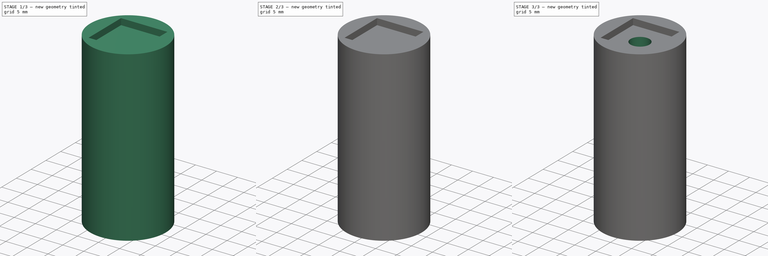
[diagram: build sequence overview — one tinted view per stage of 3, left to right]
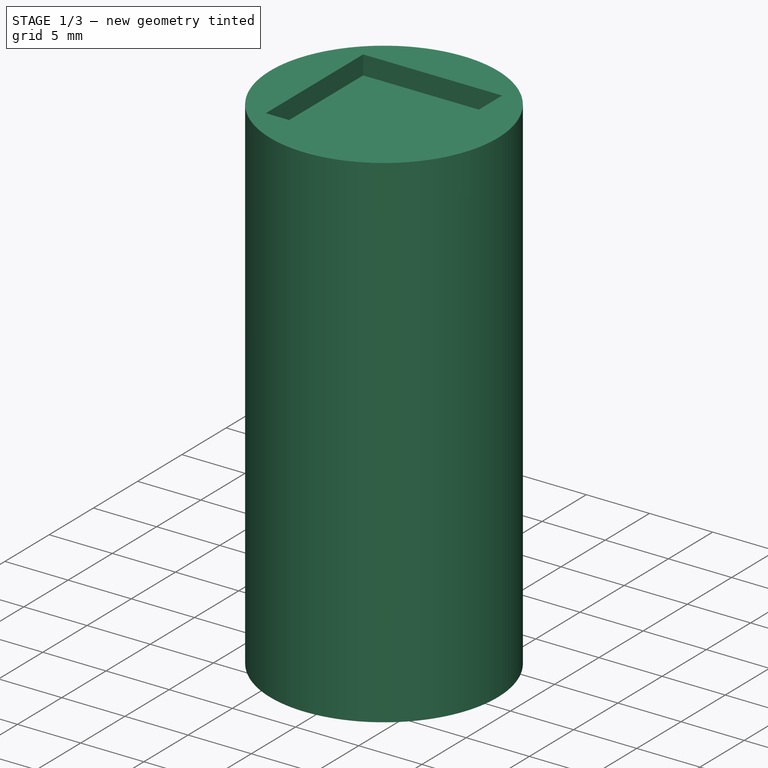
[diagram: stage 1 of 3 — iso view after this stage's code; geometry added in this stage tinted green]
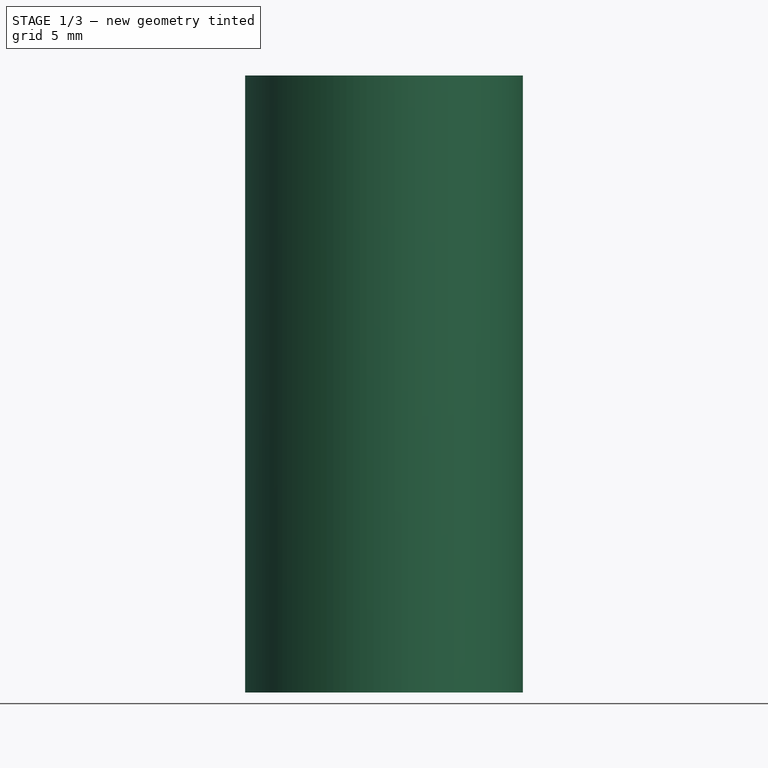
[diagram: stage 1 of 3 — front view after this stage's code; geometry added in this stage tinted green]
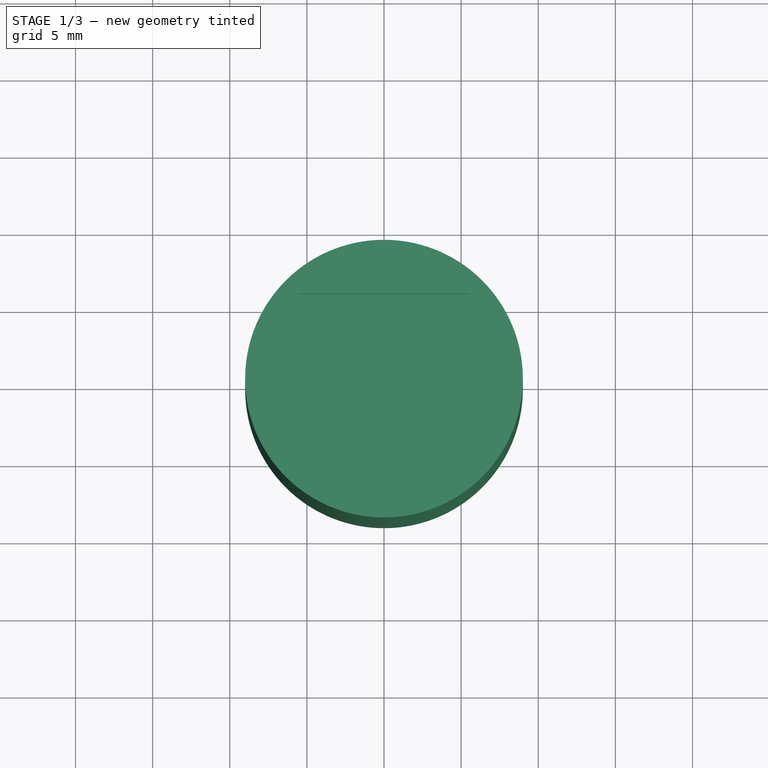
[diagram: stage 1 of 3 — top view after this stage's code; geometry added in this stage tinted green]
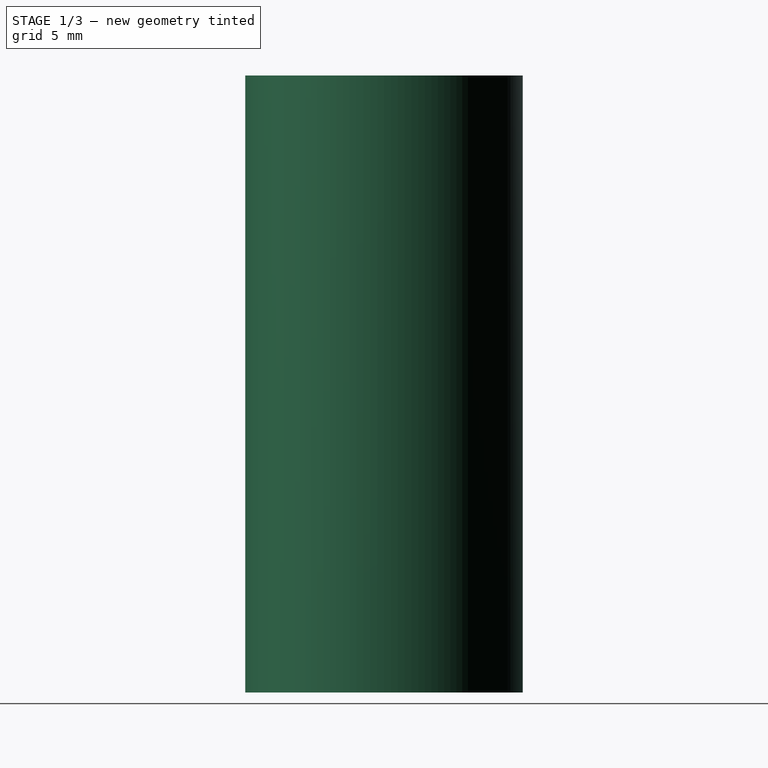
[diagram: stage 1 of 3 — right view after this stage's code; geometry added in this stage tinted green]
FCSTD DOCUMENT  (FreeCAD 0.19R24276 (Git))
Label: liitokala
License: All rights reserved
LicenseURL: http://en.wikipedia.org/wiki/All_rights_reserved
objects: Sketcher::SketchObject×6, PartDesign::Pocket×5, PartDesign::Pad×1, PartDesign::Body×1
note: 19 computed .brp shape members not serialized (recipe doc carries the construction recipe); baked Part::Feature solids carry a one-line shape summary decoded from their .brp

FEATURE [Sketcher::SketchObject] Sketch
  FullyConstrained = true
  MapMode = 5
  Support = -> [XY_Plane]
  expr: Constraints[1] = 18 / 2
  sketch-geometry (1):
    g0: Circle CenterX=0 CenterY=0 CenterZ=0 NormalX=0 NormalY=0 NormalZ=1 AngleXU=0 Radius=9
  constraints (2):
    c: Coincident(g0,g-1)
    c: Radius(g0) = 9
FEATURE [PartDesign::Pad] Pad
  Direction = (1,1,1)
  Length = 40
  Length2 = 100
  Profile = -> Sketch
  Type = 0
  expr: Length = 65 - 25
FEATURE [Sketcher::SketchObject] Sketch001
  FullyConstrained = true
  MapMode = 5
  Placement = pos=(0,0,40) rot=(0,0,1;0rad)
  Support = -> [Pad]
  expr: Constraints[11] = 11 / 2
  expr: Constraints[10] = 11 / 2
  sketch-geometry (4):
    g0: LineSegment StartX=-5.5 StartY=5.5 StartZ=0 EndX=5.5 EndY=5.5 EndZ=0
    g1: LineSegment StartX=5.5 StartY=5.5 StartZ=0 EndX=5.5 EndY=-5.5 EndZ=0
    g2: LineSegment StartX=5.5 StartY=-5.5 StartZ=0 EndX=-5.5 EndY=-5.5 EndZ=0
    g3: LineSegment StartX=-5.5 StartY=-5.5 StartZ=0 EndX=-5.5 EndY=5.5 EndZ=0
  constraints (12):
    c: Coincident(g0,g1)
    c: Coincident(g1,g2)
    c: Coincident(g2,g3)
    c: Coincident(g3,g0)
    c: Horizontal(g0)
    c: Horizontal(g2)
    c: Vertical(g1)
    c: Vertical(g3)
    c: DistanceX(g0,g0) = 11
    c: DistanceY(g1,g1) = 11
    c: DistanceX(g0) = 5.5
    c: DistanceY(g0) = 5.5
FEATURE [PartDesign::Pocket] Pocket
  BaseFeature = -> Pad
  Length = 1.5
  Length2 = 100
  Profile = -> Sketch001
  Type = 0
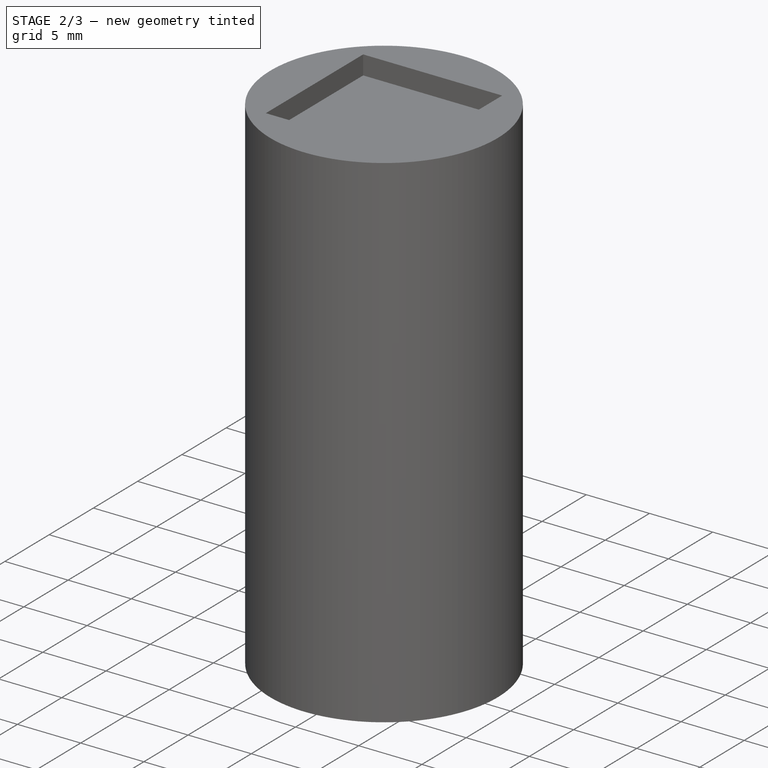
[diagram: stage 2 of 3 — iso view after this stage's code; geometry added in this stage tinted green]
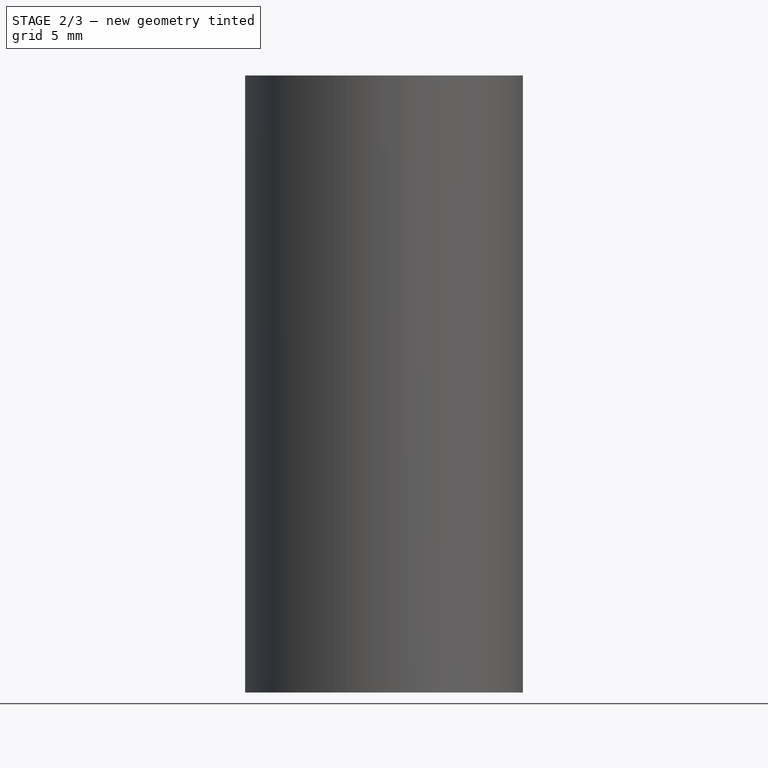
[diagram: stage 2 of 3 — front view after this stage's code; geometry added in this stage tinted green]
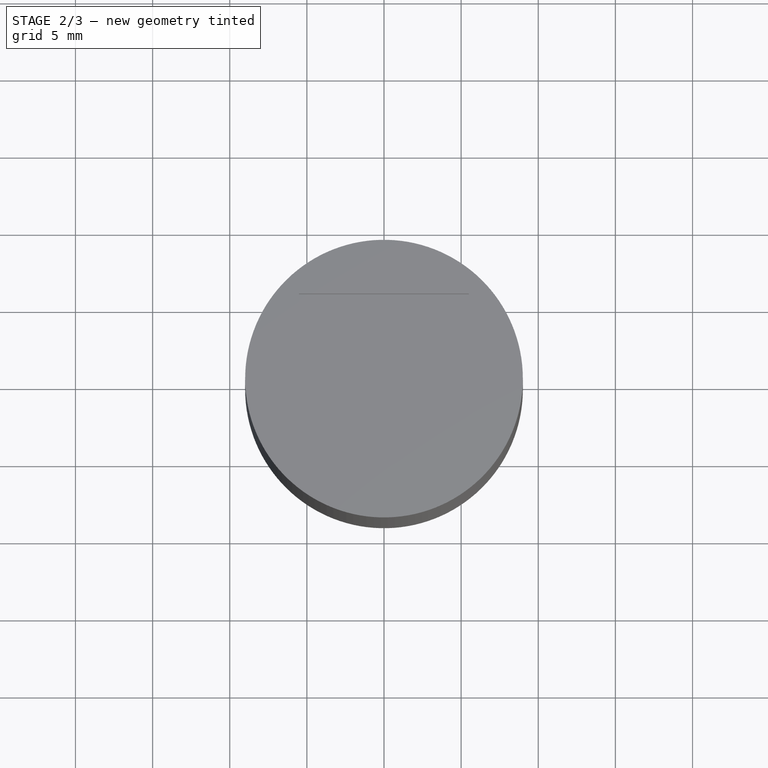
[diagram: stage 2 of 3 — top view after this stage's code; geometry added in this stage tinted green]
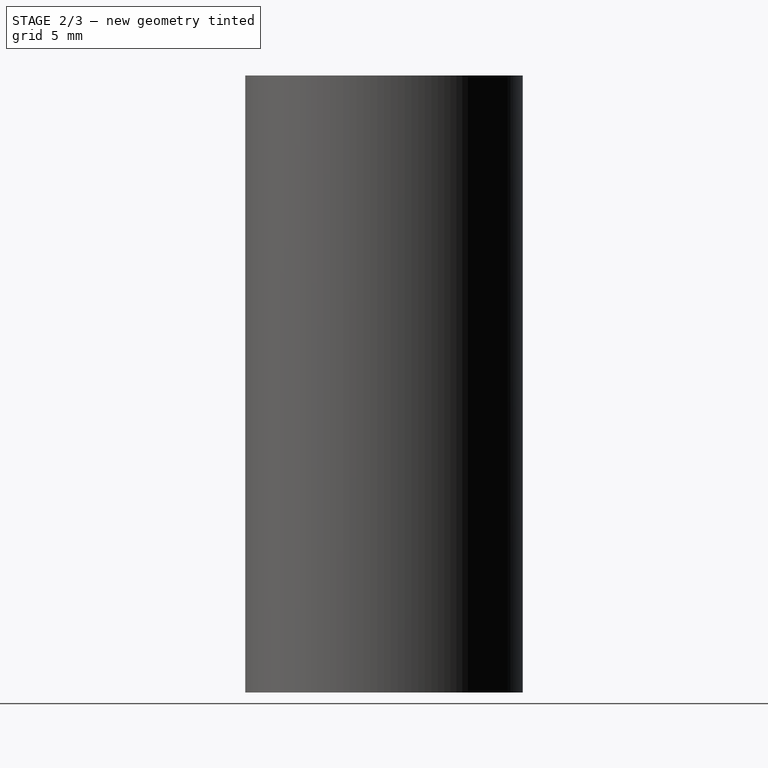
[diagram: stage 2 of 3 — right view after this stage's code; geometry added in this stage tinted green]
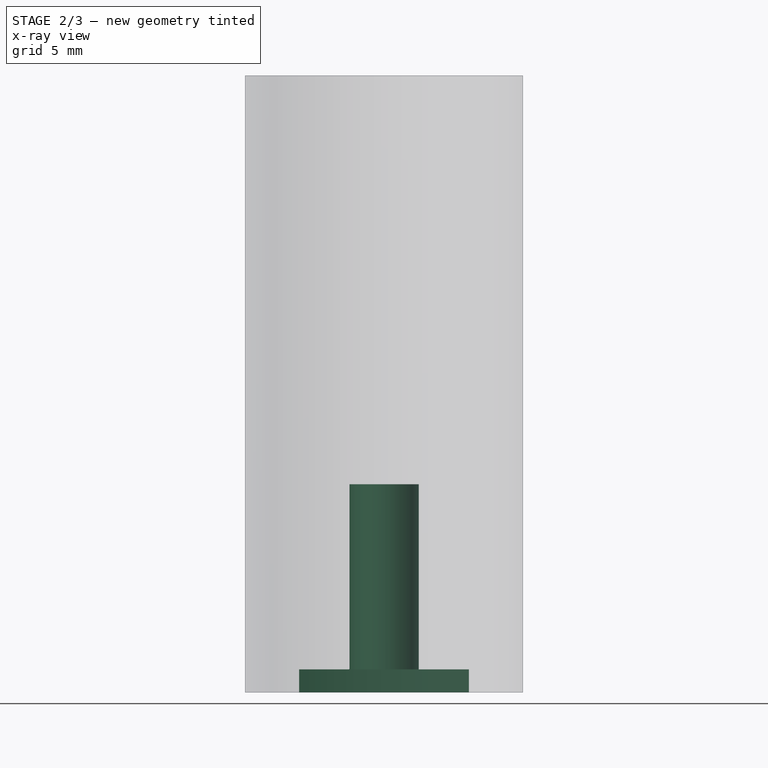
[diagram: stage 2 of 3 — x-ray composite at the front view; earlier geometry ghosted, this stage's added geometry solid]
FEATURE [Sketcher::SketchObject] Sketch002
  FullyConstrained = true
  MapMode = 5
  Placement = pos=(0,0,0) rot=(1,0,0;3.14159rad)
  Support = -> [Pocket]
  expr: Constraints[11] = 11 / 2
  expr: Constraints[10] = 11 / 2
  sketch-geometry (4):
    g0: LineSegment StartX=-5.5 StartY=5.5 StartZ=0 EndX=5.5 EndY=5.5 EndZ=0
    g1: LineSegment StartX=5.5 StartY=5.5 StartZ=0 EndX=5.5 EndY=-5.5 EndZ=0
    g2: LineSegment StartX=5.5 StartY=-5.5 StartZ=0 EndX=-5.5 EndY=-5.5 EndZ=0
    g3: LineSegment StartX=-5.5 StartY=-5.5 StartZ=0 EndX=-5.5 EndY=5.5 EndZ=0
  constraints (12):
    c: Coincident(g0,g1)
    c: Coincident(g1,g2)
    c: Coincident(g2,g3)
    c: Coincident(g3,g0)
    c: Horizontal(g0)
    c: Horizontal(g2)
    c: Vertical(g1)
    c: Vertical(g3)
    c: DistanceX(g0,g0) = 11
    c: DistanceY(g1,g1) = 11
    c: DistanceX(g0) = 5.5
    c: DistanceY(g0) = 5.5
FEATURE [PartDesign::Pocket] Pocket001
  BaseFeature = -> Pocket
  Length = 1.5
  Length2 = 100
  Profile = -> Sketch002
  Type = 0
FEATURE [Sketcher::SketchObject] Sketch003
  FullyConstrained = true
  MapMode = 5
  Placement = pos=(0,0,1.5) rot=(1,0,0;3.14159rad)
  Support = -> [Pocket001]
  expr: Constraints[1] = 4.5 / 2
  sketch-geometry (1):
    g0: Circle CenterX=0 CenterY=0 CenterZ=0 NormalX=0 NormalY=0 NormalZ=1 AngleXU=0 Radius=2.25
  constraints (2):
    c: Coincident(g0,g-1)
    c: Radius(g0) = 2.25
FEATURE [Sketcher::SketchObject] Sketch004
  FullyConstrained = true
  MapMode = 5
  Placement = pos=(0,0,38.5) rot=(0,0,1;0rad)
  Support = -> [Pocket001]
  expr: Constraints[0] = 4.5 / 2
  sketch-geometry (1):
    g0: Circle CenterX=0 CenterY=0 CenterZ=0 NormalX=0 NormalY=0 NormalZ=1 AngleXU=0 Radius=2.25
  constraints (2):
    c: Radius(g0) = 2.25
    c: Coincident(g0,g-1)
FEATURE [PartDesign::Pocket] Pocket002
  BaseFeature = -> Pocket001
  Length = 12
  Length2 = 100
  Profile = -> Sketch003
  Type = 0
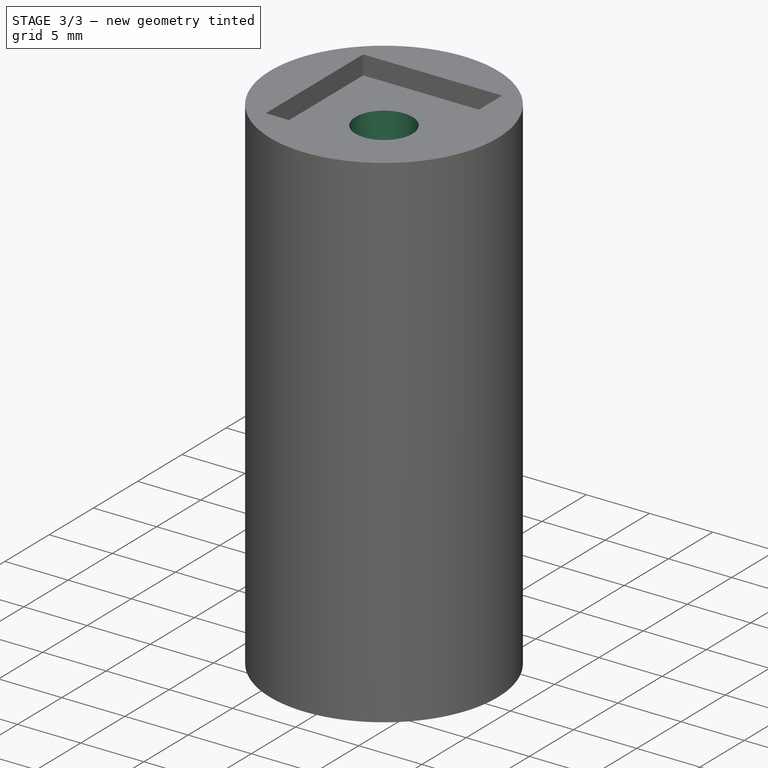
[diagram: stage 3 of 3 — iso view after this stage's code; geometry added in this stage tinted green]
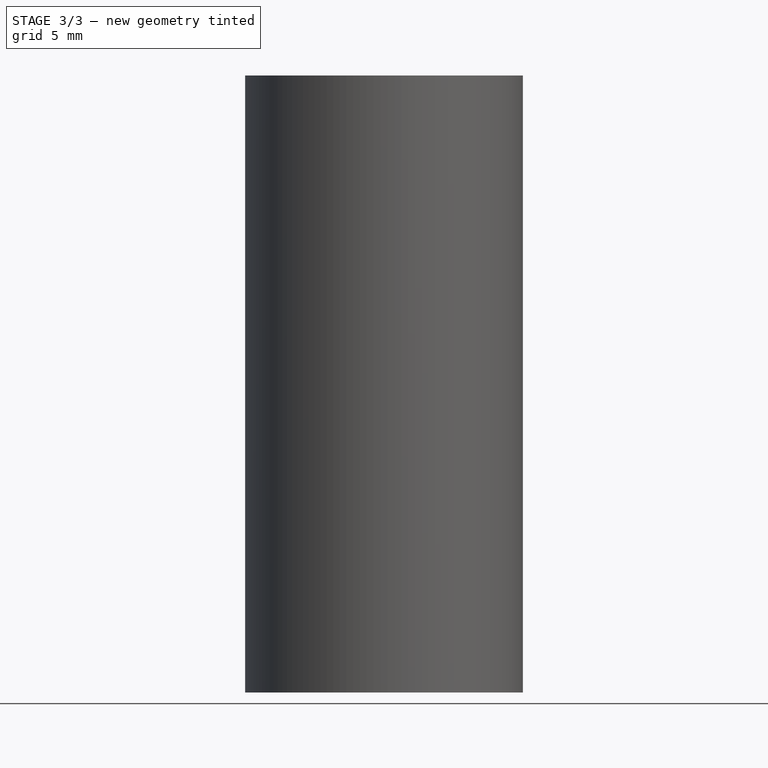
[diagram: stage 3 of 3 — front view after this stage's code; geometry added in this stage tinted green]
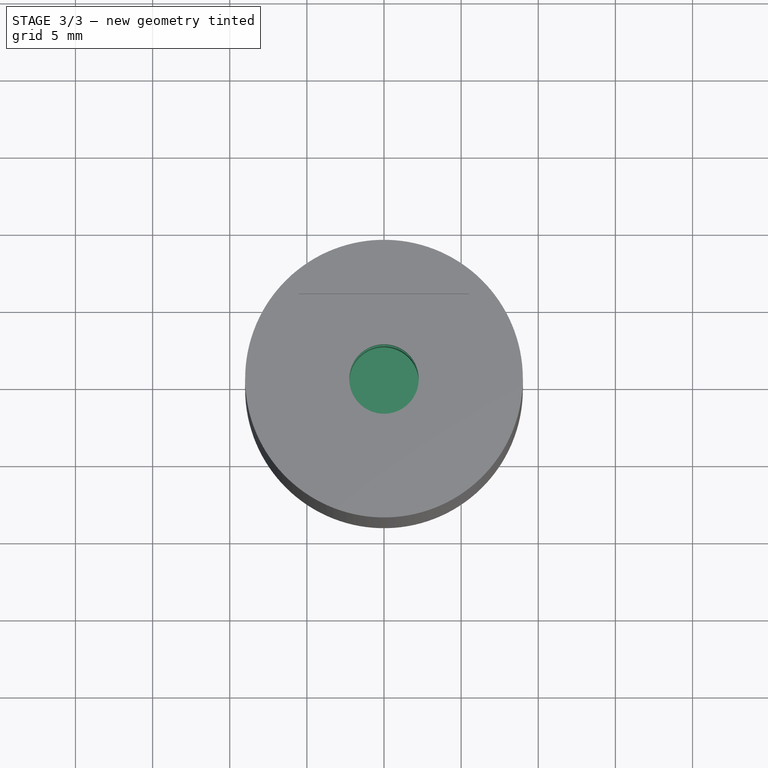
[diagram: stage 3 of 3 — top view after this stage's code; geometry added in this stage tinted green]
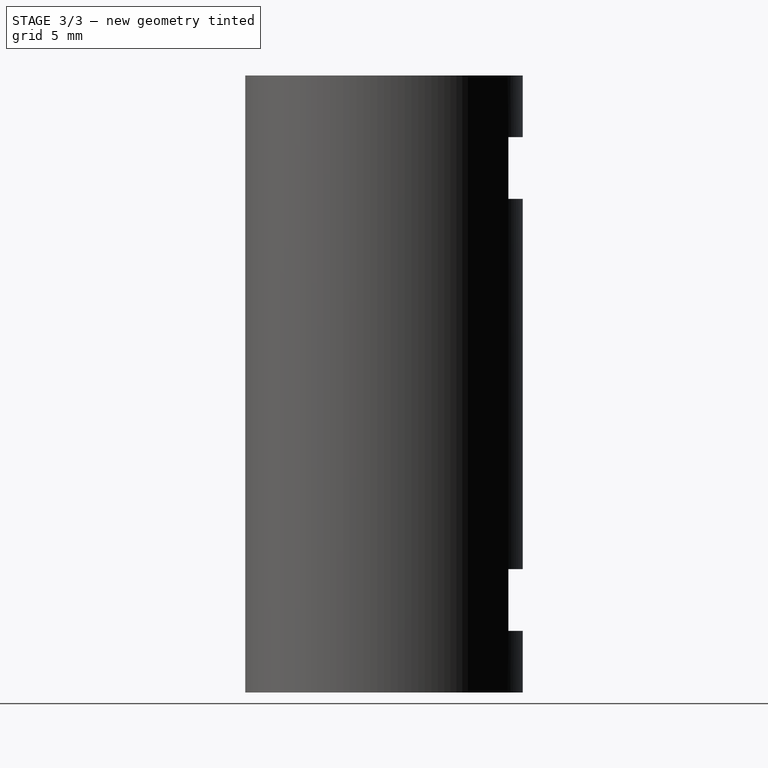
[diagram: stage 3 of 3 — right view after this stage's code; geometry added in this stage tinted green]
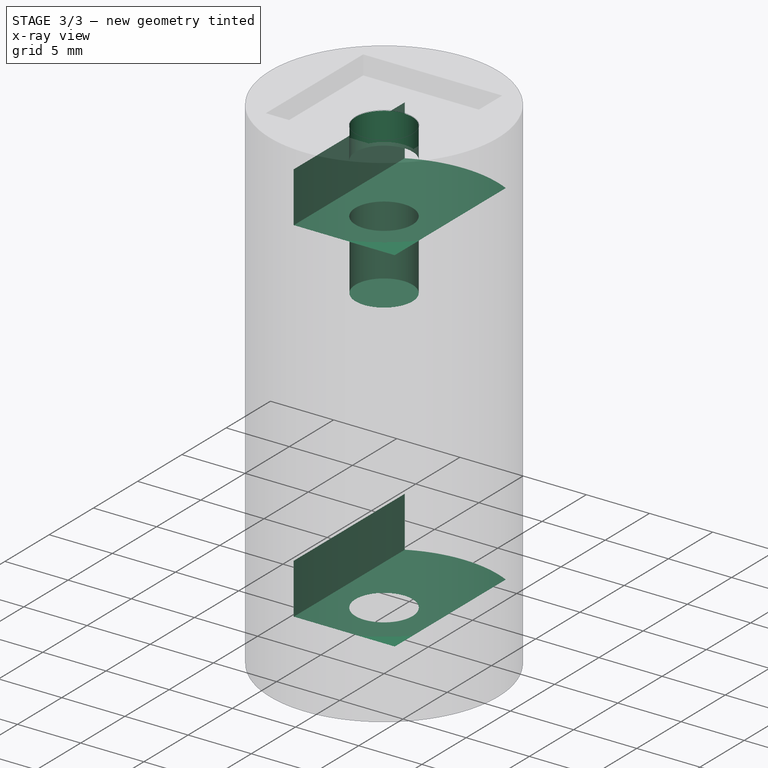
[diagram: stage 3 of 3 — x-ray composite at the iso view; earlier geometry ghosted, this stage's added geometry solid]
FEATURE [PartDesign::Pocket] Pocket003
  BaseFeature = -> Pocket002
  Length = 12
  Length2 = 100
  Profile = -> Sketch004
  Type = 0
FEATURE [Sketcher::SketchObject] Sketch005
  AttachmentOffset = pos=(0,0,4.5) rot=(0,0,1;0rad)
  ExternalGeometry = -> [Pocket003]
  FullyConstrained = true
  MapMode = 5
  Placement = pos=(0,-4.5,-1e-15) rot=(1,0,0;1.5708rad)
  Support = -> [XZ_Plane]
  expr: Constraints[22] = 8 / 2
  expr: .AttachmentOffset.Base.z = 9 / 2
  expr: Constraints[11] = 8 / 2
  sketch-geometry (8):
    g0: LineSegment StartX=-4 StartY=8 StartZ=0 EndX=4 EndY=8 EndZ=0
    g1: LineSegment StartX=4 StartY=8 StartZ=0 EndX=4 EndY=4 EndZ=0
    g2: LineSegment StartX=4 StartY=4 StartZ=0 EndX=-4 EndY=4 EndZ=0
    g3: LineSegment StartX=-4 StartY=4 StartZ=0 EndX=-4 EndY=8 EndZ=0
    g4: LineSegment StartX=-4 StartY=36 StartZ=0 EndX=4 EndY=36 EndZ=0
    g5: LineSegment StartX=4 StartY=36 StartZ=0 EndX=4 EndY=32 EndZ=0
    g6: LineSegment StartX=4 StartY=32 StartZ=0 EndX=-4 EndY=32 EndZ=0
    g7: LineSegment StartX=-4 StartY=32 StartZ=0 EndX=-4 EndY=36 EndZ=0
  constraints (24):
    c: Coincident(g0,g1)
    c: Coincident(g1,g2)
    c: Coincident(g2,g3)
    c: Coincident(g3,g0)
    c: Horizontal(g0)
    c: Horizontal(g2)
    c: Vertical(g1)
    c: Vertical(g3)
    c: DistanceX(g0,g0) = 8
    c: DistanceY(g1,g1) = 4
    c: DistanceY(g-1,g0) = 8
    c: DistanceX(g-1,g1) = 4
    c: Coincident(g4,g5)
    c: Coincident(g5,g6)
    c: Coincident(g6,g7)
    c: Coincident(g7,g4)
    c: Horizontal(g4)
    c: Horizontal(g6)
    c: Vertical(g5)
    c: Vertical(g7)
    c: Equal(g0,g6)
    c: Equal(g7,g3)
    c: DistanceX(g-1,g4) = 4
    c: DistanceY(g5,g-3) = 8
FEATURE [PartDesign::Pocket] Pocket004
  BaseFeature = -> Pocket003
  Length = 20
  Length2 = 100
  Profile = -> Sketch005
  Type = 0
FEATURE [PartDesign::Body] Body
  Group = -> [Sketch,Pad,Sketch001,Pocket,Sketch002,Pocket001,Sketch003,Sketch004,Pocket002,Pocket003,Sketch005,Pocket004]
  Origin = -> Origin
  Tip = -> Pocket004
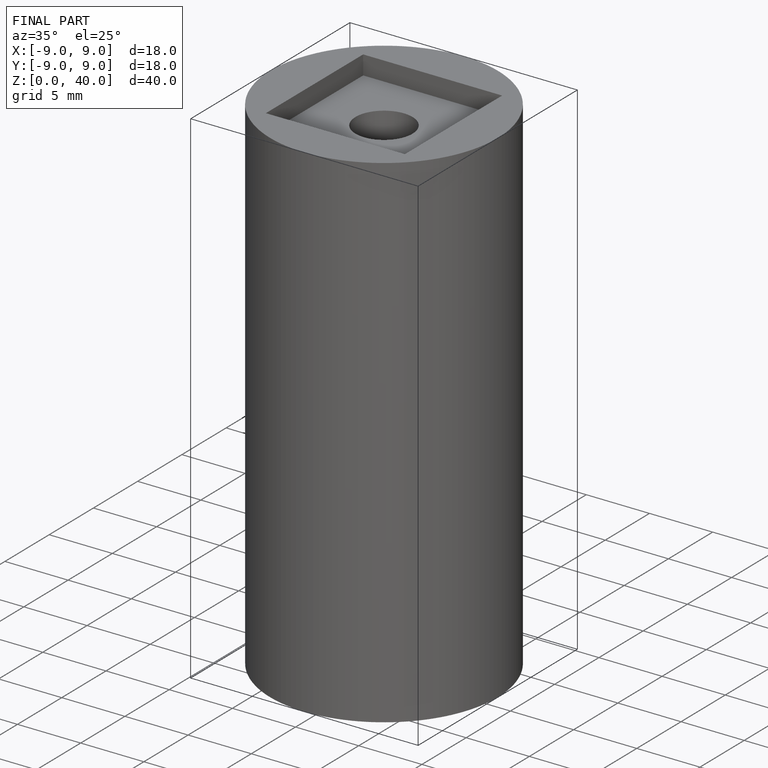
[diagram: finished part — iso view with bounding-box wireframe]
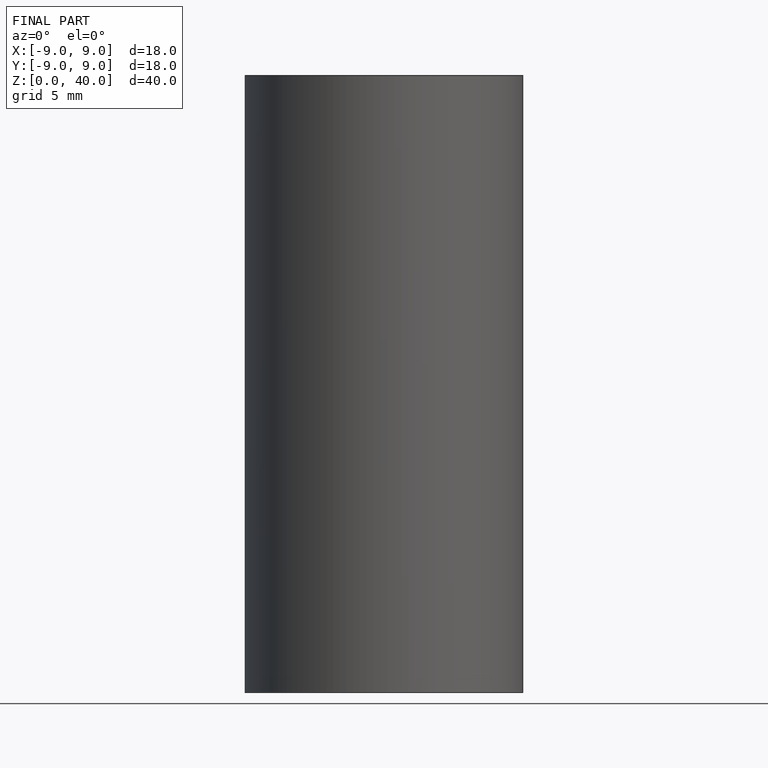
[diagram: finished part — front view with bounding-box wireframe]
